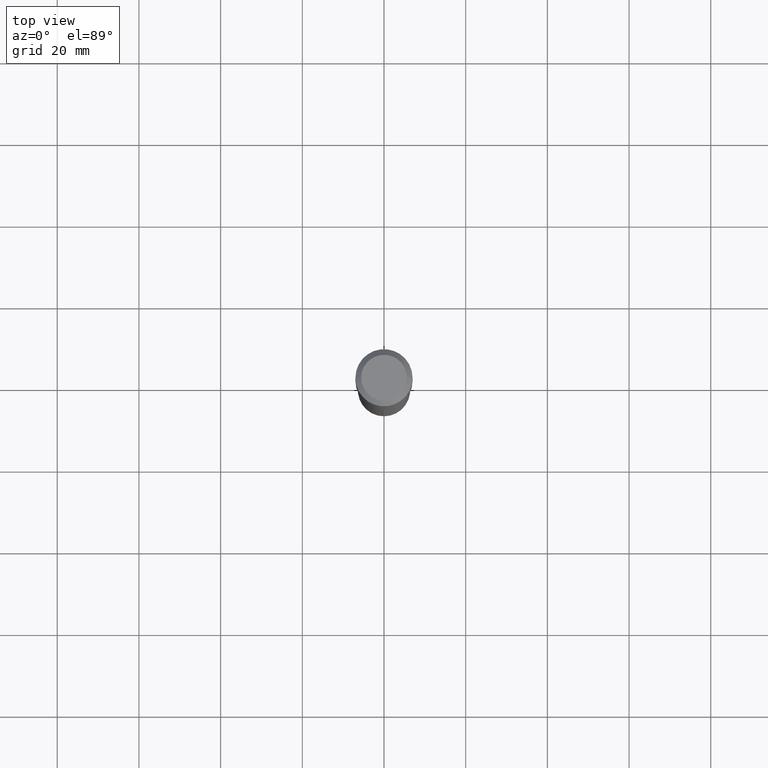
[diagram: clean part render]
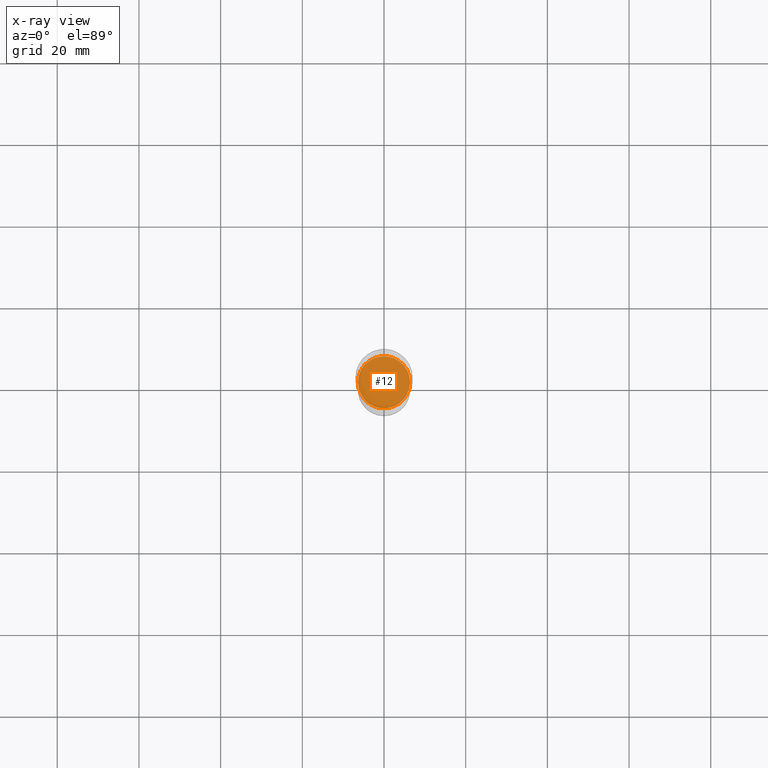
[diagram: x-ray — body ghosted, one internal face saturated and labeled with its STEP entity id]
A machine part, top view, then the same camera in x-ray: the body is ghosted and one INTERNAL B-rep face — a face not visible from any outside direction — is saturated and labeled: STEP entity #12.
In plain terms, the highlighted planar face has unit normal (-0, 0, 1).
Its self-contained STEP definition (entity closure, byte-faithful):
#8 = FACE_OUTER_BOUND ( 'NONE', #57, .T. ) ;
#12 = ADVANCED_FACE ( 'NONE', ( #8 ), #264, .F. ) ;
#29 = CIRCLE ( 'NONE', #441, 0.2514500000000000068 ) ;
#45 = DIRECTION ( 'NONE',  ( -2.438088387897960049E-29, 3.491481338843145188E-15, 1.000000000000000000 ) ) ;
#57 = EDGE_LOOP ( 'NONE', ( #174, #124 ) ) ;
#61 = VERTEX_POINT ( 'NONE', #453 ) ;
#62 = DIRECTION ( 'NONE',  ( -2.445468806185136597E-29, 3.491481338843145583E-15, 1.000000000000000000 ) ) ;
#98 = EDGE_CURVE ( 'NONE', #61, #418, #29, .T. ) ;
#124 = ORIENTED_EDGE ( 'NONE', *, *, #430, .F. ) ;
#172 = DIRECTION ( 'NONE',  ( 1.000000000000000000, -6.982962677686267499E-15, 0.000000000000000000 ) ) ;
#174 = ORIENTED_EDGE ( 'NONE', *, *, #98, .F. ) ;
#175 = AXIS2_PLACEMENT_3D ( 'NONE', #385, #45, #428 ) ;
#212 = CARTESIAN_POINT ( 'NONE',  ( 6.354550692872080783E-29, -9.072614258983919289E-15, -2.598500000000001364 ) ) ;
#249 = CARTESIAN_POINT ( 'NONE',  ( -0.2514500000000000068, -7.283305322741034150E-15, -2.598500000000001364 ) ) ;
#252 = DIRECTION ( 'NONE',  ( -2.445468806185136597E-29, 3.491481338843145583E-15, 1.000000000000000000 ) ) ;
#264 = PLANE ( 'NONE',  #175 ) ;
#309 = AXIS2_PLACEMENT_3D ( 'NONE', #212, #62, #449 ) ;
#367 = CARTESIAN_POINT ( 'NONE',  ( 6.354550692872080783E-29, -9.072614258983919289E-15, -2.598500000000001364 ) ) ;
#385 = CARTESIAN_POINT ( 'NONE',  ( 2.411818052475197427E-29, -1.471883180643795840E-14, -2.598500000000001364 ) ) ;
#418 = VERTEX_POINT ( 'NONE', #249 ) ;
#423 = CIRCLE ( 'NONE', #309, 0.2514500000000000068 ) ;
#428 = DIRECTION ( 'NONE',  ( 1.000000000000000000, -6.982962677686265922E-15, 4.876176775795935793E-29 ) ) ;
#430 = EDGE_CURVE ( 'NONE', #418, #61, #423, .T. ) ;
#441 = AXIS2_PLACEMENT_3D ( 'NONE', #367, #252, #172 ) ;
#449 = DIRECTION ( 'NONE',  ( 1.000000000000000000, -6.982962677686267499E-15, 0.000000000000000000 ) ) ;
#453 = CARTESIAN_POINT ( 'NONE',  ( 0.2514500000000000068, -1.082848022428813148E-14, -2.598500000000001364 ) ) ;